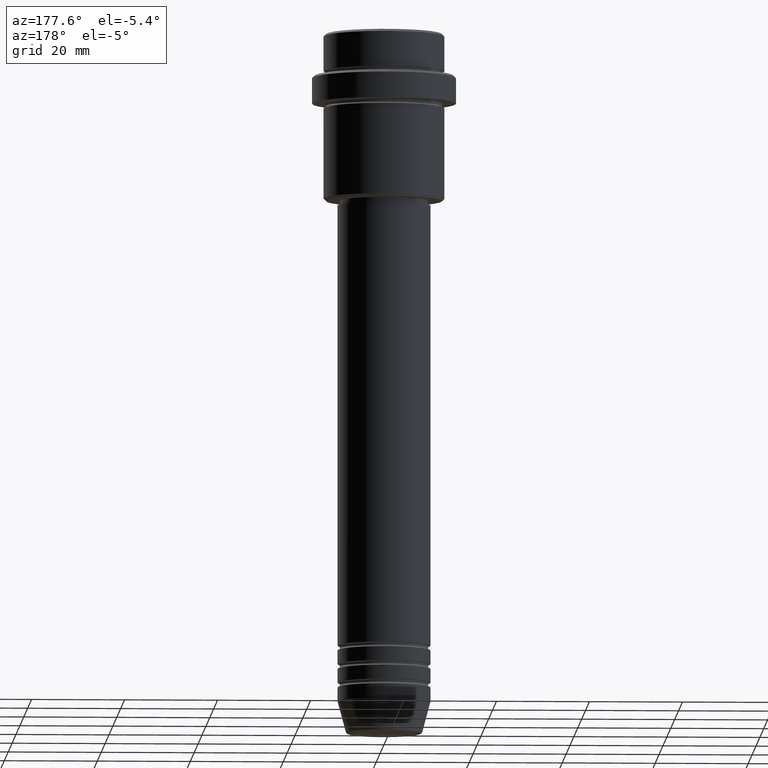
[diagram: clean part render]
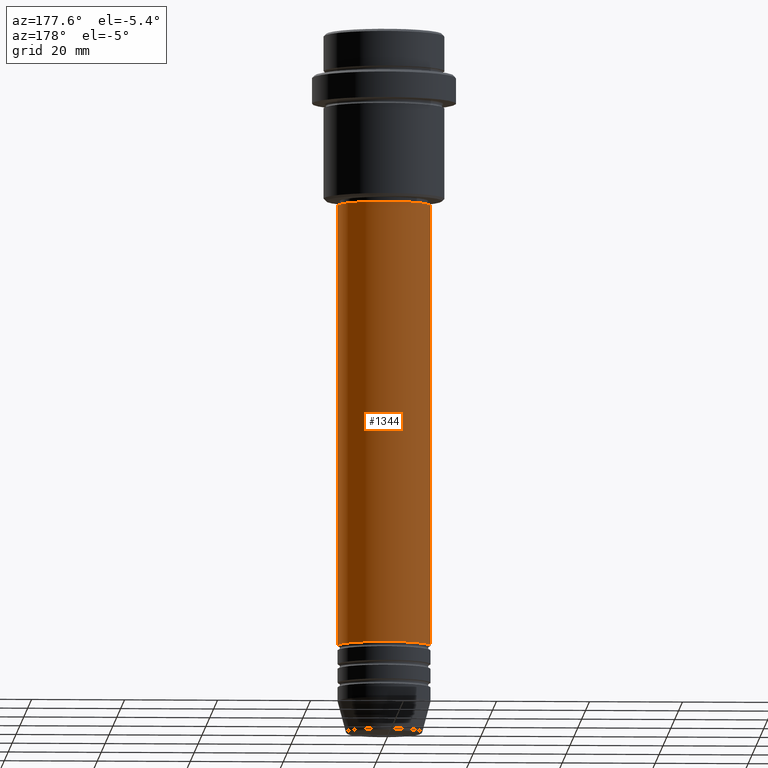
[diagram: same view with one face highlighted and labeled with its STEP entity id]
A machine part, auxiliary view. The second image highlights one B-rep face of the part: STEP entity #1344.
In plain terms, the highlighted cylindrical surface (partial cylindrical patch) has radius 10 mm, axis along (-0, -0, 1).
Its self-contained STEP definition (entity closure, byte-faithful):
#7 = EDGE_CURVE ( 'NONE', #1060, #418, #909, .T. ) ;
#18 = DIRECTION ( 'NONE',  ( -0.000000000000000000, -0.000000000000000000, 1.000000000000000000 ) ) ;
#24 = CARTESIAN_POINT ( 'NONE',  ( -10.00000000000000178, 1.224646799147353454E-15, 0.000000000000000000 ) ) ;
#74 = CYLINDRICAL_SURFACE ( 'NONE', #1076, 10.00000000000000178 ) ;
#114 = ORIENTED_EDGE ( 'NONE', *, *, #174, .T. ) ;
#124 = VECTOR ( 'NONE', #181, 1000.000000000000000 ) ;
#142 = DIRECTION ( 'NONE',  ( 1.000000000000000000, 0.000000000000000000, 0.000000000000000000 ) ) ;
#165 = DIRECTION ( 'NONE',  ( -0.000000000000000000, -0.000000000000000000, 1.000000000000000000 ) ) ;
#174 = EDGE_CURVE ( 'NONE', #1006, #418, #600, .T. ) ;
#181 = DIRECTION ( 'NONE',  ( -0.000000000000000000, -0.000000000000000000, 1.000000000000000000 ) ) ;
#187 = DIRECTION ( 'NONE',  ( 1.000000000000000000, 0.000000000000000000, 0.000000000000000000 ) ) ;
#231 = EDGE_LOOP ( 'NONE', ( #430, #114, #542, #648 ) ) ;
#251 = DIRECTION ( 'NONE',  ( -0.000000000000000000, -0.000000000000000000, 1.000000000000000000 ) ) ;
#282 = CARTESIAN_POINT ( 'NONE',  ( -10.00000000000000000, 1.224646799147353256E-15, -131.9999999999998579 ) ) ;
#335 = CIRCLE ( 'NONE', #1298, 10.00000000000000000 ) ;
#400 = CARTESIAN_POINT ( 'NONE',  ( -10.00000000000000178, 1.224646799147353454E-15, -37.00000000000000000 ) ) ;
#418 = VERTEX_POINT ( 'NONE', #400 ) ;
#430 = ORIENTED_EDGE ( 'NONE', *, *, #970, .T. ) ;
#485 = CARTESIAN_POINT ( 'NONE',  ( 0.000000000000000000, 0.000000000000000000, 0.000000000000000000 ) ) ;
#524 = EDGE_CURVE ( 'NONE', #1225, #1060, #696, .T. ) ;
#542 = ORIENTED_EDGE ( 'NONE', *, *, #7, .F. ) ;
#600 = LINE ( 'NONE', #24, #639 ) ;
#607 = CARTESIAN_POINT ( 'NONE',  ( 10.00000000000000178, 0.000000000000000000, 0.000000000000000000 ) ) ;
#639 = VECTOR ( 'NONE', #18, 1000.000000000000000 ) ;
#648 = ORIENTED_EDGE ( 'NONE', *, *, #524, .F. ) ;
#656 = AXIS2_PLACEMENT_3D ( 'NONE', #1050, #719, #187 ) ;
#696 = LINE ( 'NONE', #607, #124 ) ;
#719 = DIRECTION ( 'NONE',  ( -0.000000000000000000, -0.000000000000000000, 1.000000000000000000 ) ) ;
#777 = CARTESIAN_POINT ( 'NONE',  ( 10.00000000000000000, 0.000000000000000000, -131.9999999999998579 ) ) ;
#783 = CARTESIAN_POINT ( 'NONE',  ( 0.000000000000000000, 0.000000000000000000, -131.9999999999998579 ) ) ;
#909 = CIRCLE ( 'NONE', #656, 10.00000000000000178 ) ;
#970 = EDGE_CURVE ( 'NONE', #1225, #1006, #335, .T. ) ;
#1006 = VERTEX_POINT ( 'NONE', #282 ) ;
#1050 = CARTESIAN_POINT ( 'NONE',  ( 0.000000000000000000, 0.000000000000000000, -37.00000000000000000 ) ) ;
#1060 = VERTEX_POINT ( 'NONE', #1404 ) ;
#1076 = AXIS2_PLACEMENT_3D ( 'NONE', #485, #165, #1236 ) ;
#1225 = VERTEX_POINT ( 'NONE', #777 ) ;
#1236 = DIRECTION ( 'NONE',  ( 1.000000000000000000, 0.000000000000000000, 0.000000000000000000 ) ) ;
#1298 = AXIS2_PLACEMENT_3D ( 'NONE', #783, #251, #142 ) ;
#1344 = ADVANCED_FACE ( 'NONE', ( #1416 ), #74, .T. ) ;
#1404 = CARTESIAN_POINT ( 'NONE',  ( 10.00000000000000178, 0.000000000000000000, -37.00000000000000000 ) ) ;
#1416 = FACE_OUTER_BOUND ( 'NONE', #231, .T. ) ;